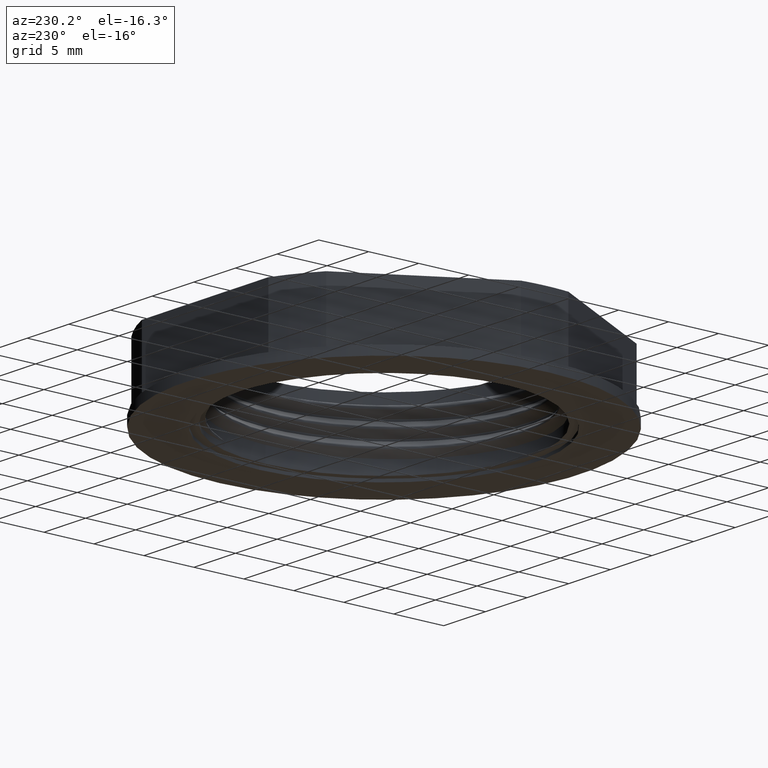
[diagram: clean part render]
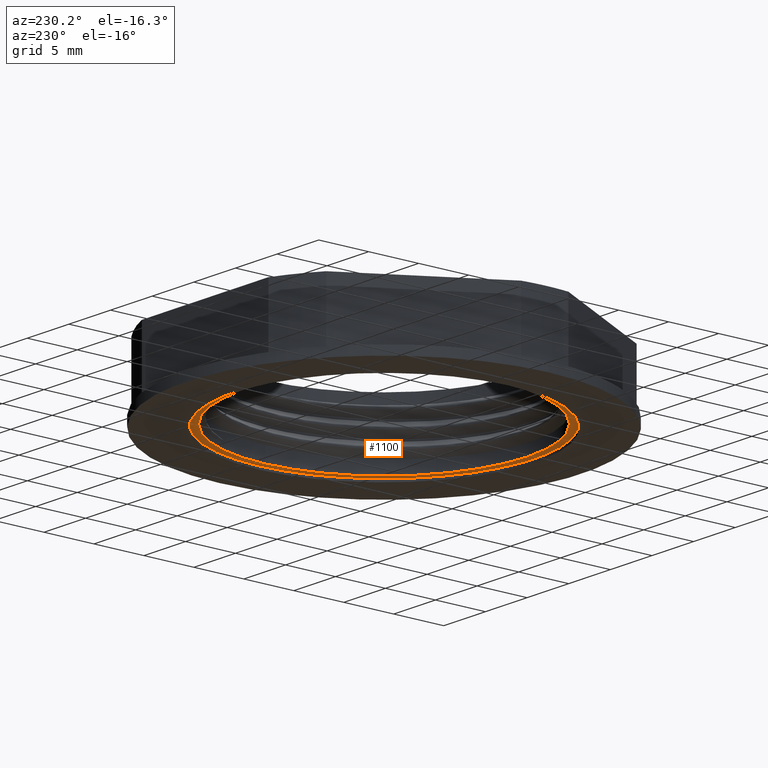
[diagram: same view with one face highlighted and labeled with its STEP entity id]
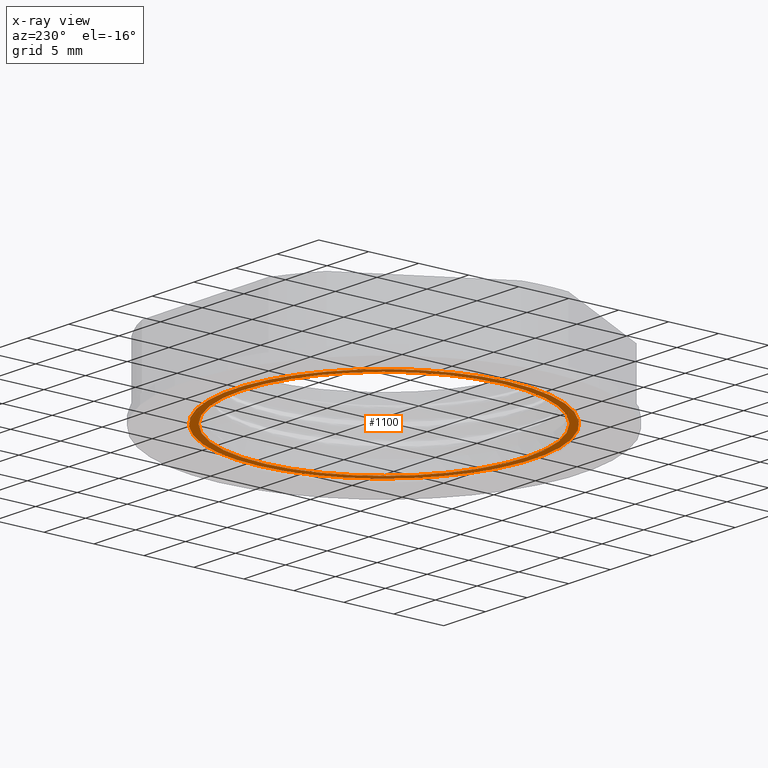
[diagram: x-ray of the same camera — body ghosted, the highlighted face saturated]
A machine part, auxiliary view. The second image highlights one B-rep face of the part: STEP entity #1100.
The next image is the same camera in x-ray: the body ghosted, the highlighted face saturated — about 0% of this face is hidden behind the body in this view.
In plain terms, the highlighted planar face has unit normal (0, 0, -1).
Its self-contained STEP definition (entity closure, byte-faithful):
#635 = CARTESIAN_POINT ( 'NONE',  ( 2363.492954869249800, 871.3999937272660600, 16.72777715393555200 ) ) ;
#636 = DIRECTION ( 'NONE',  ( -0.0000000000000000000, -0.0000000000000000000, -1.000000000000000000 ) ) ;
#656 = DIRECTION ( 'NONE',  ( -1.000000000000000000, 0.0000000000000000000, 0.0000000000000000000 ) ) ;
#984 = EDGE_CURVE ( 'NONE', #1471, #1483, #2191, .T. ) ;
#991 = EDGE_CURVE ( 'NONE', #1503, #1463, #2174, .T. ) ;
#1005 = EDGE_CURVE ( 'NONE', #1463, #1503, #2052, .T. ) ;
#1038 = EDGE_CURVE ( 'NONE', #1483, #1471, #2103, .T. ) ;
#1100 = ADVANCED_FACE ( 'NONE', ( #1123, #1141 ), #1159, .T. ) ;
#1115 = DIRECTION ( 'NONE',  ( 0.0000000000000000000, 0.0000000000000000000, -1.000000000000000000 ) ) ;
#1118 = CARTESIAN_POINT ( 'NONE',  ( 2378.492954869249800, 871.3999937272660600, 16.72777715393555200 ) ) ;
#1123 = FACE_BOUND ( 'NONE', #1508, .T. ) ;
#1124 = CARTESIAN_POINT ( 'NONE',  ( 2363.492954869249800, 871.3999937272660600, 16.72777715393555200 ) ) ;
#1141 = FACE_OUTER_BOUND ( 'NONE', #1514, .T. ) ;
#1143 = DIRECTION ( 'NONE',  ( -1.000000000000000000, 0.0000000000000000000, -0.0000000000000000000 ) ) ;
#1157 = CARTESIAN_POINT ( 'NONE',  ( 2349.242954869249800, 871.3999937272660600, 16.72777715393555200 ) ) ;
#1159 = PLANE ( 'NONE',  #2141 ) ;
#1201 = CARTESIAN_POINT ( 'NONE',  ( 2348.492954869249800, 871.3999937272660600, 16.72777715393555200 ) ) ;
#1216 = CARTESIAN_POINT ( 'NONE',  ( 2377.742954869249800, 871.3999937272660600, 16.72777715393555200 ) ) ;
#1463 = VERTEX_POINT ( 'NONE', #1157 ) ;
#1471 = VERTEX_POINT ( 'NONE', #1118 ) ;
#1483 = VERTEX_POINT ( 'NONE', #1201 ) ;
#1503 = VERTEX_POINT ( 'NONE', #1216 ) ;
#1508 = EDGE_LOOP ( 'NONE', ( #1617, #1571 ) ) ;
#1514 = EDGE_LOOP ( 'NONE', ( #1610, #1594 ) ) ;
#1571 = ORIENTED_EDGE ( 'NONE', *, *, #1005, .T. ) ;
#1594 = ORIENTED_EDGE ( 'NONE', *, *, #984, .T. ) ;
#1610 = ORIENTED_EDGE ( 'NONE', *, *, #1038, .T. ) ;
#1617 = ORIENTED_EDGE ( 'NONE', *, *, #991, .T. ) ;
#1806 = CARTESIAN_POINT ( 'NONE',  ( 2363.492954869249800, 871.3999937272660600, 16.72777715393555200 ) ) ;
#1817 = DIRECTION ( 'NONE',  ( -0.0000000000000000000, -0.0000000000000000000, -1.000000000000000000 ) ) ;
#1828 = DIRECTION ( 'NONE',  ( -1.000000000000000000, 0.0000000000000000000, 0.0000000000000000000 ) ) ;
#1847 = CARTESIAN_POINT ( 'NONE',  ( 2363.492954869249800, 871.3999937272660600, 16.72777715393555200 ) ) ;
#1848 = DIRECTION ( 'NONE',  ( 0.0000000000000000000, 0.0000000000000000000, 1.000000000000000000 ) ) ;
#1849 = DIRECTION ( 'NONE',  ( 1.000000000000000000, 0.0000000000000000000, 0.0000000000000000000 ) ) ;
#1948 = CARTESIAN_POINT ( 'NONE',  ( 2363.492954869249800, 871.3999937272660600, 16.72777715393555200 ) ) ;
#1951 = DIRECTION ( 'NONE',  ( 1.000000000000000000, 0.0000000000000000000, 0.0000000000000000000 ) ) ;
#1960 = DIRECTION ( 'NONE',  ( 0.0000000000000000000, 0.0000000000000000000, 1.000000000000000000 ) ) ;
#2052 = CIRCLE ( 'NONE', #2053, 14.25000000000009600 ) ;
#2053 = AXIS2_PLACEMENT_3D ( 'NONE', #1948, #1960, #1951 ) ;
#2103 = CIRCLE ( 'NONE', #2121, 15.00000000000012400 ) ;
#2121 = AXIS2_PLACEMENT_3D ( 'NONE', #635, #636, #656 ) ;
#2141 = AXIS2_PLACEMENT_3D ( 'NONE', #1124, #1115, #1143 ) ;
#2174 = CIRCLE ( 'NONE', #2176, 14.25000000000009600 ) ;
#2176 = AXIS2_PLACEMENT_3D ( 'NONE', #1847, #1848, #1849 ) ;
#2181 = AXIS2_PLACEMENT_3D ( 'NONE', #1806, #1817, #1828 ) ;
#2191 = CIRCLE ( 'NONE', #2181, 15.00000000000012400 ) ;